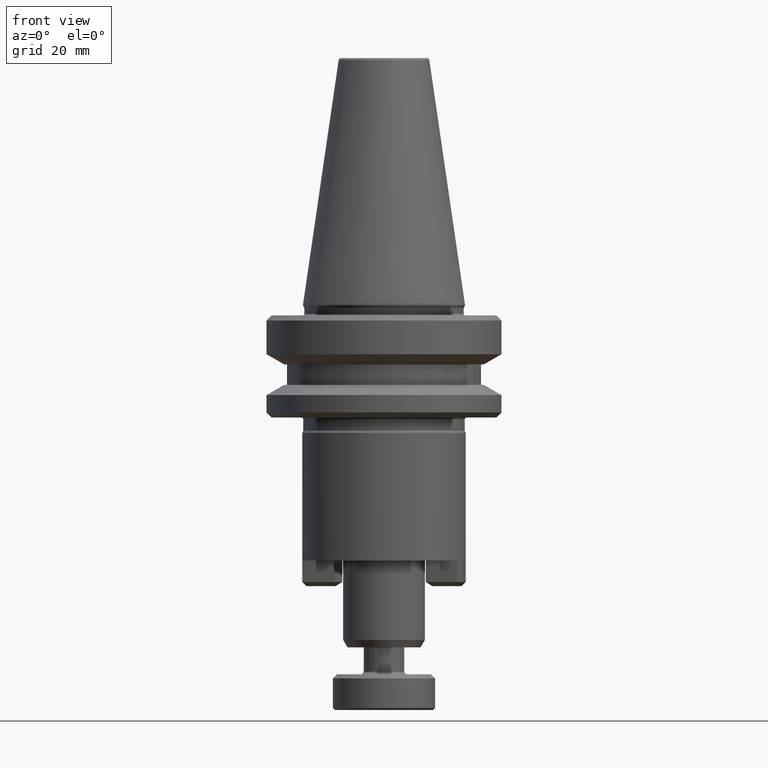
[diagram: clean part render]
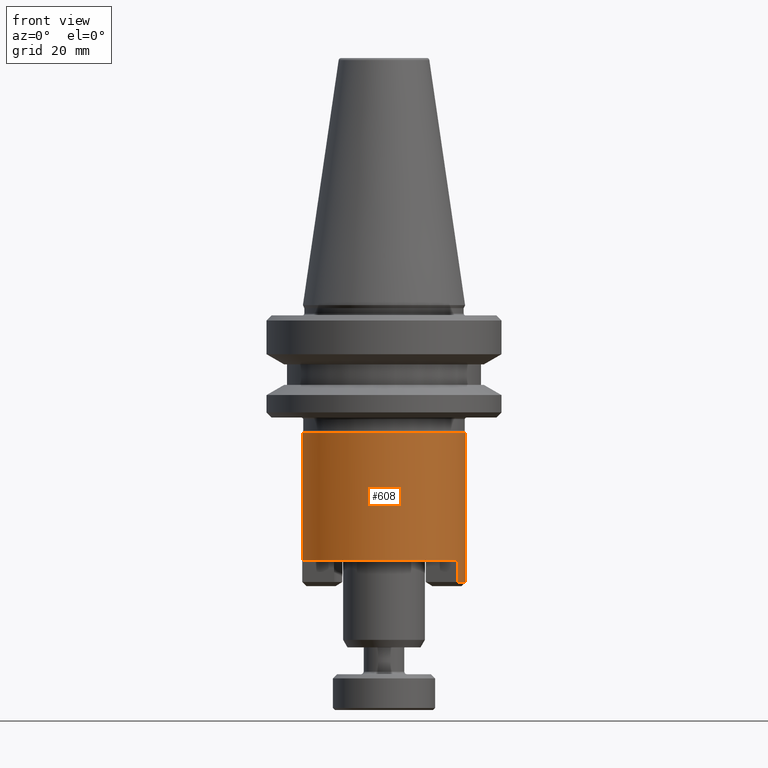
[diagram: same view with one face highlighted and labeled with its STEP entity id]
A machine part, front view. The second image highlights one B-rep face of the part: STEP entity #608.
In plain terms, the highlighted cylindrical surface (partial cylindrical patch) has radius 16 mm, axis along (-0, -0, 1).
Its self-contained STEP definition (entity closure, byte-faithful):
#12 = EDGE_CURVE ( 'NONE', #1994, #797, #847, .T. ) ;
#28 = EDGE_CURVE ( 'NONE', #1692, #636, #43, .T. ) ;
#43 = CIRCLE ( 'NONE', #869, 16.00000000000023400 ) ;
#60 = DIRECTION ( 'NONE',  ( -5.429246757912326000E-018, -2.655573853060066200E-017, -1.000000000000000000 ) ) ;
#85 = VERTEX_POINT ( 'NONE', #2084 ) ;
#100 = CARTESIAN_POINT ( 'NONE',  ( -5.371641434294362600, 1.568325594917038700, -43.13095528933179400 ) ) ;
#116 = CARTESIAN_POINT ( 'NONE',  ( -21.35082798545429800, 0.7524842112910007400, -38.93095528733179100 ) ) ;
#120 = EDGE_LOOP ( 'NONE', ( #1706, #669, #178, #834, #585, #1088, #1584, #908 ) ) ;
#175 = CARTESIAN_POINT ( 'NONE',  ( 10.62835856570587500, 1.568325594917041600, -13.93095528932894400 ) ) ;
#178 = ORIENTED_EDGE ( 'NONE', *, *, #1356, .T. ) ;
#196 = EDGE_CURVE ( 'NONE', #85, #1920, #1824, .T. ) ;
#239 = CYLINDRICAL_SURFACE ( 'NONE', #833, 16.00000000000023400 ) ;
#242 = DIRECTION ( 'NONE',  ( -0.2003038509124519300, -0.9797338247246761800, 0.0000000000000000000 ) ) ;
#275 = DIRECTION ( 'NONE',  ( 1.000000000000000000, 0.0000000000000000000, 0.0000000000000000000 ) ) ;
#323 = CARTESIAN_POINT ( 'NONE',  ( -5.371641434294362600, 1.568325594917038700, -43.13095528966319100 ) ) ;
#364 = DIRECTION ( 'NONE',  ( -0.0000000000000000000, -0.0000000000000000000, 1.000000000000000000 ) ) ;
#395 = DIRECTION ( 'NONE',  ( 5.429246757912326000E-018, 2.655573853060066200E-017, 1.000000000000000000 ) ) ;
#412 = DIRECTION ( 'NONE',  ( -0.0000000000000000000, -0.0000000000000000000, 1.000000000000000000 ) ) ;
#454 = CARTESIAN_POINT ( 'NONE',  ( 9.005114311493978000, -5.453703615072191400, -38.93095528733178400 ) ) ;
#458 = LINE ( 'NONE', #1036, #1262 ) ;
#477 = CARTESIAN_POINT ( 'NONE',  ( 10.62835856570563700, 1.568325594917041600, -43.13095528933179400 ) ) ;
#495 = DIRECTION ( 'NONE',  ( -0.2003038509124519300, -0.9797338247246761800, 0.0000000000000000000 ) ) ;
#512 = VERTEX_POINT ( 'NONE', #582 ) ;
#547 = LINE ( 'NONE', #1193, #988 ) ;
#550 = AXIS2_PLACEMENT_3D ( 'NONE', #100, #1219, #242 ) ;
#582 = CARTESIAN_POINT ( 'NONE',  ( -21.35082798578087100, 0.7524842113683522000, -43.13095528917505600 ) ) ;
#585 = ORIENTED_EDGE ( 'NONE', *, *, #1296, .T. ) ;
#608 = ADVANCED_FACE ( 'NONE', ( #728 ), #239, .T. ) ;
#634 = DIRECTION ( 'NONE',  ( -0.0000000000000000000, -0.0000000000000000000, 1.000000000000000000 ) ) ;
#636 = VERTEX_POINT ( 'NONE', #454 ) ;
#658 = VECTOR ( 'NONE', #364, 1000.000000000000000 ) ;
#667 = DIRECTION ( 'NONE',  ( -0.0000000000000000000, -0.0000000000000000000, 1.000000000000000000 ) ) ;
#669 = ORIENTED_EDGE ( 'NONE', *, *, #1891, .T. ) ;
#728 = FACE_OUTER_BOUND ( 'NONE', #120, .T. ) ;
#756 = DIRECTION ( 'NONE',  ( -0.0000000000000000000, -0.0000000000000000000, 1.000000000000000000 ) ) ;
#797 = VERTEX_POINT ( 'NONE', #477 ) ;
#833 = AXIS2_PLACEMENT_3D ( 'NONE', #1248, #756, #275 ) ;
#834 = ORIENTED_EDGE ( 'NONE', *, *, #28, .T. ) ;
#847 = CIRCLE ( 'NONE', #550, 16.00000000000000000 ) ;
#869 = AXIS2_PLACEMENT_3D ( 'NONE', #1797, #667, #1954 ) ;
#908 = ORIENTED_EDGE ( 'NONE', *, *, #1813, .F. ) ;
#988 = VECTOR ( 'NONE', #60, 1000.000000000000000 ) ;
#1036 = CARTESIAN_POINT ( 'NONE',  ( -21.35082798546598300, 0.7524842115244057000, -43.13095528933179400 ) ) ;
#1071 = CIRCLE ( 'NONE', #1325, 16.00000000000000000 ) ;
#1080 = LINE ( 'NONE', #1174, #658 ) ;
#1088 = ORIENTED_EDGE ( 'NONE', *, *, #12, .T. ) ;
#1149 = CARTESIAN_POINT ( 'NONE',  ( -21.37164143429459500, 1.568325594917043600, -13.93095528932894400 ) ) ;
#1174 = CARTESIAN_POINT ( 'NONE',  ( 10.62835856570587500, 1.568325594917041600, 75.33775355038541500 ) ) ;
#1193 = CARTESIAN_POINT ( 'NONE',  ( 9.005114311493978000, -5.453703615072191400, -43.13095528933179400 ) ) ;
#1219 = DIRECTION ( 'NONE',  ( 5.429246757912326000E-018, 2.655573853060066200E-017, 1.000000000000000000 ) ) ;
#1220 = EDGE_CURVE ( 'NONE', #797, #1942, #1080, .T. ) ;
#1248 = CARTESIAN_POINT ( 'NONE',  ( -5.371641434294360800, 1.568325594917041600, 75.33775355038541500 ) ) ;
#1262 = VECTOR ( 'NONE', #395, 1000.000000000000000 ) ;
#1289 = CIRCLE ( 'NONE', #1599, 16.00000000000023400 ) ;
#1296 = EDGE_CURVE ( 'NONE', #636, #1994, #547, .T. ) ;
#1325 = AXIS2_PLACEMENT_3D ( 'NONE', #323, #1459, #495 ) ;
#1356 = EDGE_CURVE ( 'NONE', #512, #1692, #458, .T. ) ;
#1386 = CARTESIAN_POINT ( 'NONE',  ( -21.37164143429459500, 1.568325594917043600, 75.33775355038541500 ) ) ;
#1410 = VECTOR ( 'NONE', #412, 1000.000000000000000 ) ;
#1459 = DIRECTION ( 'NONE',  ( 5.429246757912326000E-018, 2.655573853060066200E-017, 1.000000000000000000 ) ) ;
#1584 = ORIENTED_EDGE ( 'NONE', *, *, #1220, .T. ) ;
#1596 = CARTESIAN_POINT ( 'NONE',  ( -5.371641434294360800, 1.568325594917041600, -13.93095528932894400 ) ) ;
#1599 = AXIS2_PLACEMENT_3D ( 'NONE', #1596, #634, #1759 ) ;
#1641 = CARTESIAN_POINT ( 'NONE',  ( 9.005114310524435300, -5.453703617057207100, -43.13095528933179400 ) ) ;
#1692 = VERTEX_POINT ( 'NONE', #116 ) ;
#1706 = ORIENTED_EDGE ( 'NONE', *, *, #196, .F. ) ;
#1759 = DIRECTION ( 'NONE',  ( 1.000000000000000000, 0.0000000000000000000, 0.0000000000000000000 ) ) ;
#1797 = CARTESIAN_POINT ( 'NONE',  ( -5.371641434294360800, 1.568325594917041600, -38.93095528733179100 ) ) ;
#1813 = EDGE_CURVE ( 'NONE', #1920, #1942, #1289, .T. ) ;
#1824 = LINE ( 'NONE', #1386, #1410 ) ;
#1891 = EDGE_CURVE ( 'NONE', #85, #512, #1071, .T. ) ;
#1920 = VERTEX_POINT ( 'NONE', #1149 ) ;
#1942 = VERTEX_POINT ( 'NONE', #175 ) ;
#1954 = DIRECTION ( 'NONE',  ( 1.000000000000000000, 0.0000000000000000000, 0.0000000000000000000 ) ) ;
#1994 = VERTEX_POINT ( 'NONE', #1641 ) ;
#2084 = CARTESIAN_POINT ( 'NONE',  ( -21.37164143429436100, 1.568325594917043600, -43.13095528966319100 ) ) ;